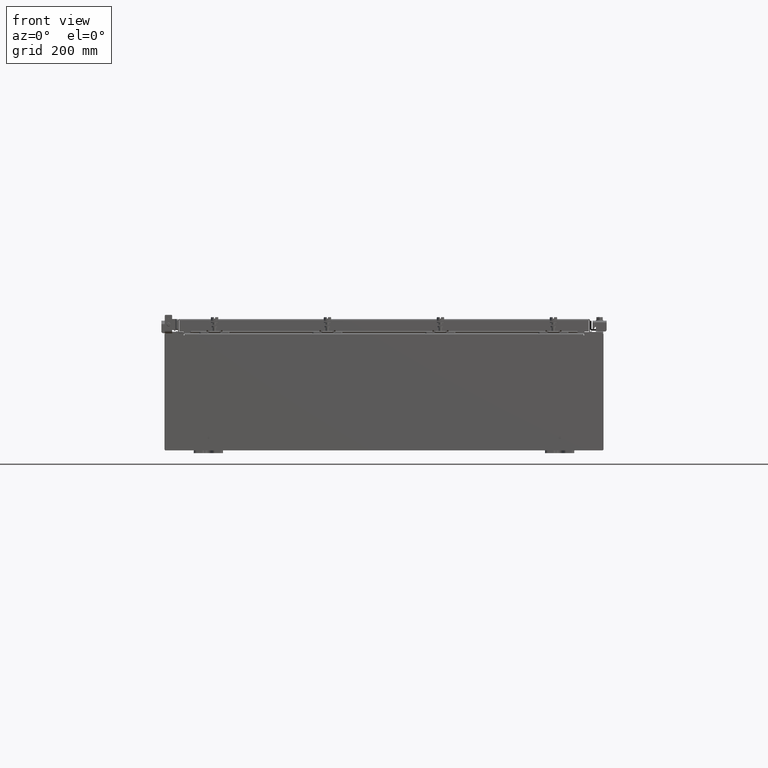
[diagram: clean part render]
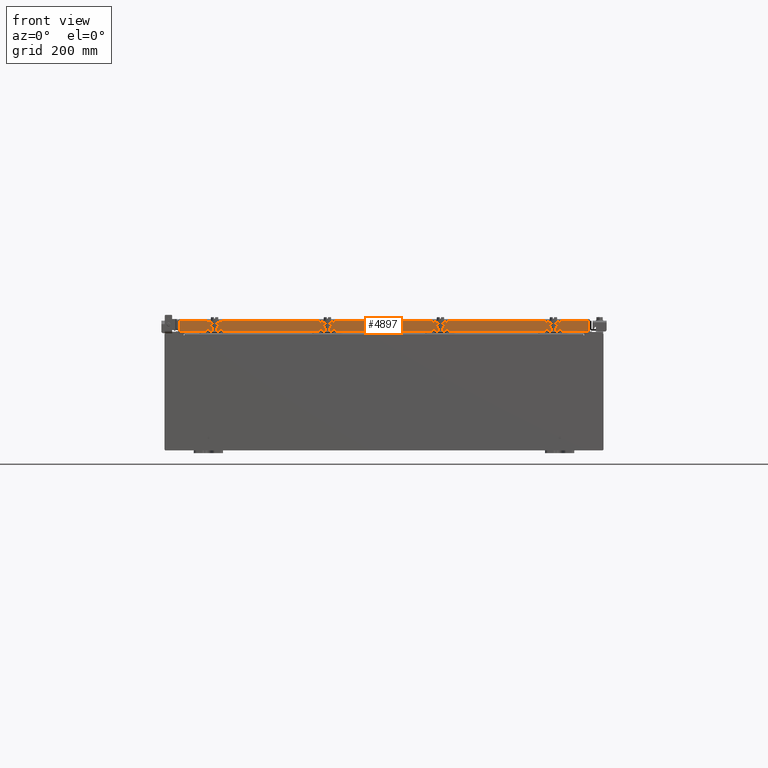
[diagram: same view with one face highlighted and labeled with its STEP entity id]
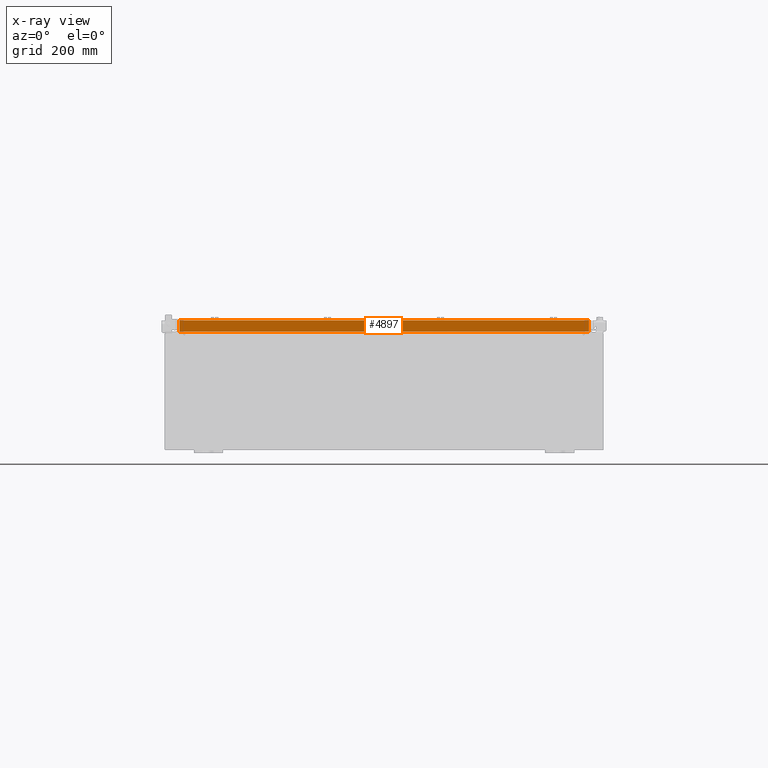
[diagram: x-ray of the same camera — body ghosted, the highlighted face saturated]
A machine part, front view. The second image highlights one B-rep face of the part: STEP entity #4897.
The next image is the same camera in x-ray: the body ghosted, the highlighted face saturated — about 0% of this face is hidden behind the body in this view.
In plain terms, the highlighted planar face has unit normal (-0, 1, -0).
Its self-contained STEP definition (entity closure, byte-faithful):
#357 = VERTEX_POINT ( 'NONE', #15347 ) ;
#608 = VECTOR ( 'NONE', #21359, 39.37007874015748100 ) ;
#624 = PLANE ( 'NONE',  #14905 ) ;
#1277 = VECTOR ( 'NONE', #14450, 39.37007874015748100 ) ;
#2664 = VECTOR ( 'NONE', #20261, 39.37007874015748100 ) ;
#4536 = LINE ( 'NONE', #20419, #17351 ) ;
#4897 = ADVANCED_FACE ( 'NONE', ( #7842 ), #624, .F. ) ;
#4985 = VERTEX_POINT ( 'NONE', #12589 ) ;
#5139 = CARTESIAN_POINT ( 'NONE',  ( 13.23915786437626900, -17.09399999999999800, -0.8500000000000010900 ) ) ;
#5505 = EDGE_CURVE ( 'NONE', #15899, #18147, #4536, .T. ) ;
#5898 = LINE ( 'NONE', #19603, #1277 ) ;
#6041 = EDGE_CURVE ( 'NONE', #357, #21624, #11876, .T. ) ;
#6297 = DIRECTION ( 'NONE',  ( -1.000000000000000000, 4.379057701015054300E-047, 1.212817869044015600E-016 ) ) ;
#6630 = VECTOR ( 'NONE', #6297, 39.37007874015748100 ) ;
#7281 = LINE ( 'NONE', #8130, #2664 ) ;
#7368 = EDGE_LOOP ( 'NONE', ( #13204, #17793, #14755, #9769, #10696, #14044 ) ) ;
#7842 = FACE_OUTER_BOUND ( 'NONE', #7368, .T. ) ;
#8041 = CARTESIAN_POINT ( 'NONE',  ( 14.07799999999999900, -17.09400000000000500, -0.8499999999999999800 ) ) ;
#8130 = CARTESIAN_POINT ( 'NONE',  ( 14.07799999999999800, -17.09400000000000100, -0.08770000000000026400 ) ) ;
#9229 = CARTESIAN_POINT ( 'NONE',  ( -13.98915786437626900, -17.09400000000000100, 4.808052468849102900E-014 ) ) ;
#9680 = CARTESIAN_POINT ( 'NONE',  ( 13.98915786437626700, -17.09400000000000500, -0.8499999999999999800 ) ) ;
#9722 = EDGE_CURVE ( 'NONE', #21624, #15899, #11253, .T. ) ;
#9769 = ORIENTED_EDGE ( 'NONE', *, *, #5505, .F. ) ;
#10131 = EDGE_CURVE ( 'NONE', #14529, #4985, #13448, .T. ) ;
#10696 = ORIENTED_EDGE ( 'NONE', *, *, #9722, .F. ) ;
#11253 = LINE ( 'NONE', #8041, #6630 ) ;
#11876 = LINE ( 'NONE', #16459, #17045 ) ;
#12589 = CARTESIAN_POINT ( 'NONE',  ( -13.98915786437626900, -17.09400000000000500, -0.8499999999999966500 ) ) ;
#12826 = EDGE_CURVE ( 'NONE', #18147, #4985, #5898, .T. ) ;
#13204 = ORIENTED_EDGE ( 'NONE', *, *, #20448, .F. ) ;
#13448 = LINE ( 'NONE', #9229, #608 ) ;
#14044 = ORIENTED_EDGE ( 'NONE', *, *, #6041, .F. ) ;
#14360 = CARTESIAN_POINT ( 'NONE',  ( -13.98915786437626900, -17.09400000000000100, -0.08770000000000026400 ) ) ;
#14450 = DIRECTION ( 'NONE',  ( -1.000000000000000000, 4.379057701015054300E-047, 1.212817869044015600E-016 ) ) ;
#14529 = VERTEX_POINT ( 'NONE', #14360 ) ;
#14755 = ORIENTED_EDGE ( 'NONE', *, *, #12826, .F. ) ;
#14905 = AXIS2_PLACEMENT_3D ( 'NONE', #22333, #21780, #21736 ) ;
#15347 = CARTESIAN_POINT ( 'NONE',  ( 13.98915786437626500, -17.09400000000000100, -0.08770000000000026400 ) ) ;
#15899 = VERTEX_POINT ( 'NONE', #5139 ) ;
#16313 = DIRECTION ( 'NONE',  ( -0.0000000000000000000, -2.818880942772360100E-015, -1.000000000000000000 ) ) ;
#16459 = CARTESIAN_POINT ( 'NONE',  ( 13.98915786437626700, -17.09400000000000100, -0.07470000000000015500 ) ) ;
#17045 = VECTOR ( 'NONE', #16313, 39.37007874015748100 ) ;
#17351 = VECTOR ( 'NONE', #21525, 39.37007874015748100 ) ;
#17793 = ORIENTED_EDGE ( 'NONE', *, *, #10131, .T. ) ;
#18147 = VERTEX_POINT ( 'NONE', #21179 ) ;
#19603 = CARTESIAN_POINT ( 'NONE',  ( 14.07799999999999900, -17.09400000000000500, -0.8499999999999999800 ) ) ;
#20261 = DIRECTION ( 'NONE',  ( 1.000000000000000000, 3.418789178101959700E-031, -9.318824769679573900E-046 ) ) ;
#20419 = CARTESIAN_POINT ( 'NONE',  ( 13.23915786437626900, -17.09399999999999800, -0.8500000000000010900 ) ) ;
#20448 = EDGE_CURVE ( 'NONE', #14529, #357, #7281, .T. ) ;
#21179 = CARTESIAN_POINT ( 'NONE',  ( -13.23915786437626900, -17.09399999999999800, -0.8500000000000010900 ) ) ;
#21359 = DIRECTION ( 'NONE',  ( 0.0000000000000000000, -2.818880942772360100E-015, -1.000000000000000000 ) ) ;
#21525 = DIRECTION ( 'NONE',  ( -1.000000000000000000, 0.0000000000000000000, 0.0000000000000000000 ) ) ;
#21624 = VERTEX_POINT ( 'NONE', #9680 ) ;
#21736 = DIRECTION ( 'NONE',  ( 0.0000000000000000000, 2.818880942772360100E-015, 1.000000000000000000 ) ) ;
#21780 = DIRECTION ( 'NONE',  ( -3.418789178101958800E-031, 1.000000000000000000, -2.818880942772360100E-015 ) ) ;
#22333 = CARTESIAN_POINT ( 'NONE',  ( 0.0000000000000000000, -17.09400000000000100, 4.808052468849102900E-014 ) ) ;